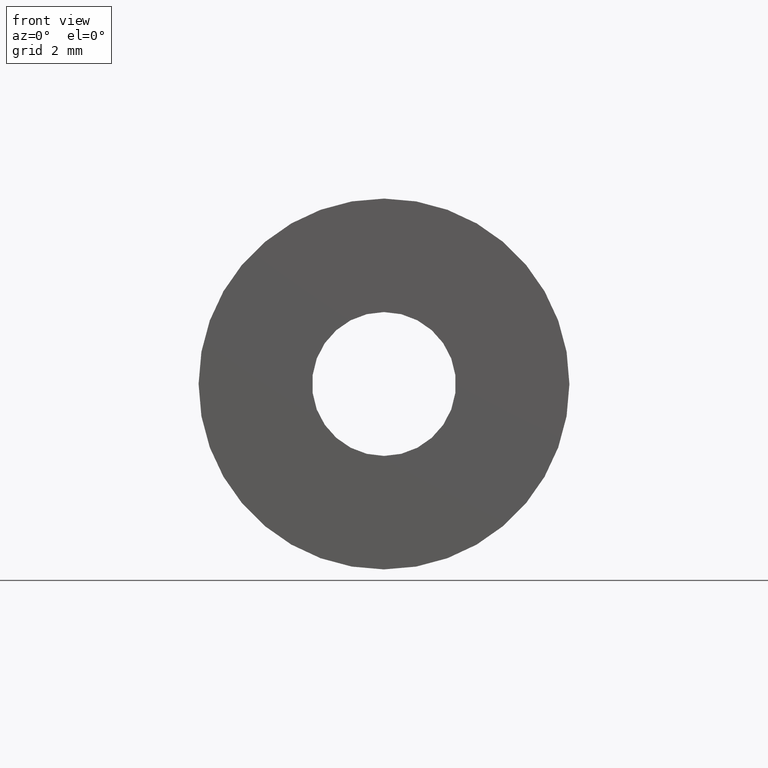
[diagram: clean part render]
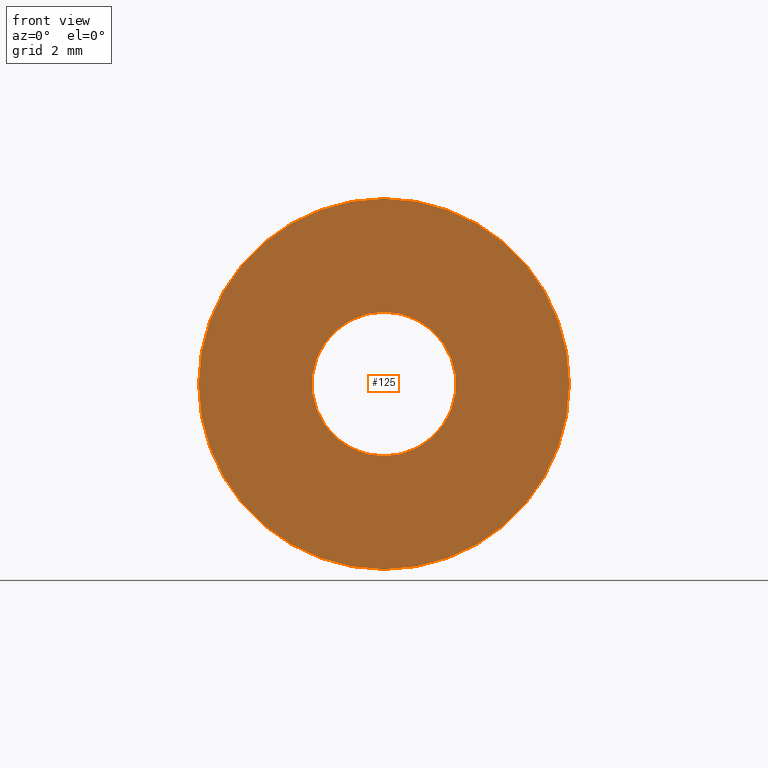
[diagram: same view with one face highlighted and labeled with its STEP entity id]
A machine part, front view. The second image highlights one B-rep face of the part: STEP entity #125.
In plain terms, the highlighted planar face has unit normal (0, 1, 0).
Its self-contained STEP definition (entity closure, byte-faithful):
#3 = CIRCLE ( 'NONE', #106, 0.09700000000000000300 ) ;
#10 = CARTESIAN_POINT ( 'NONE',  ( 3.061616997868383000E-017, 0.0000000000000000000, 0.2500000000000000000 ) ) ;
#12 = CARTESIAN_POINT ( 'NONE',  ( 0.0000000000000000000, 0.0000000000000000000, 0.0000000000000000000 ) ) ;
#14 = EDGE_CURVE ( 'NONE', #208, #220, #95, .T. ) ;
#32 = CIRCLE ( 'NONE', #56, 0.2500000000000000000 ) ;
#41 = DIRECTION ( 'NONE',  ( 0.0000000000000000000, 1.000000000000000000, 0.0000000000000000000 ) ) ;
#43 = EDGE_CURVE ( 'NONE', #220, #208, #3, .T. ) ;
#44 = CARTESIAN_POINT ( 'NONE',  ( 1.187907395172932600E-017, 0.0000000000000000000, 0.09700000000000000300 ) ) ;
#56 = AXIS2_PLACEMENT_3D ( 'NONE', #169, #76, #199 ) ;
#64 = DIRECTION ( 'NONE',  ( 0.0000000000000000000, 1.000000000000000000, 0.0000000000000000000 ) ) ;
#70 = CARTESIAN_POINT ( 'NONE',  ( 0.0000000000000000000, 0.0000000000000000000, -0.2500000000000000000 ) ) ;
#71 = CARTESIAN_POINT ( 'NONE',  ( 0.0000000000000000000, 0.0000000000000000000, 0.0000000000000000000 ) ) ;
#76 = DIRECTION ( 'NONE',  ( 0.0000000000000000000, 1.000000000000000000, 0.0000000000000000000 ) ) ;
#78 = FACE_OUTER_BOUND ( 'NONE', #193, .T. ) ;
#80 = DIRECTION ( 'NONE',  ( 0.0000000000000000000, -0.0000000000000000000, 1.000000000000000000 ) ) ;
#81 = CIRCLE ( 'NONE', #107, 0.2500000000000000000 ) ;
#84 = VERTEX_POINT ( 'NONE', #70 ) ;
#91 = AXIS2_PLACEMENT_3D ( 'NONE', #71, #163, #128 ) ;
#93 = DIRECTION ( 'NONE',  ( 0.0000000000000000000, 0.0000000000000000000, 1.000000000000000000 ) ) ;
#94 = EDGE_CURVE ( 'NONE', #84, #129, #81, .T. ) ;
#95 = CIRCLE ( 'NONE', #91, 0.09700000000000000300 ) ;
#96 = EDGE_LOOP ( 'NONE', ( #124, #164 ) ) ;
#106 = AXIS2_PLACEMENT_3D ( 'NONE', #179, #41, #93 ) ;
#107 = AXIS2_PLACEMENT_3D ( 'NONE', #148, #64, #186 ) ;
#111 = ORIENTED_EDGE ( 'NONE', *, *, #94, .F. ) ;
#124 = ORIENTED_EDGE ( 'NONE', *, *, #43, .T. ) ;
#125 = ADVANCED_FACE ( 'NONE', ( #78, #181 ), #218, .F. ) ;
#128 = DIRECTION ( 'NONE',  ( 0.0000000000000000000, 0.0000000000000000000, 1.000000000000000000 ) ) ;
#129 = VERTEX_POINT ( 'NONE', #10 ) ;
#137 = ORIENTED_EDGE ( 'NONE', *, *, #188, .F. ) ;
#148 = CARTESIAN_POINT ( 'NONE',  ( 0.0000000000000000000, 0.0000000000000000000, 0.0000000000000000000 ) ) ;
#163 = DIRECTION ( 'NONE',  ( 0.0000000000000000000, 1.000000000000000000, 0.0000000000000000000 ) ) ;
#164 = ORIENTED_EDGE ( 'NONE', *, *, #14, .T. ) ;
#169 = CARTESIAN_POINT ( 'NONE',  ( 0.0000000000000000000, 0.0000000000000000000, 0.0000000000000000000 ) ) ;
#173 = AXIS2_PLACEMENT_3D ( 'NONE', #12, #187, #80 ) ;
#179 = CARTESIAN_POINT ( 'NONE',  ( 0.0000000000000000000, 0.0000000000000000000, 0.0000000000000000000 ) ) ;
#181 = FACE_BOUND ( 'NONE', #96, .T. ) ;
#186 = DIRECTION ( 'NONE',  ( 0.0000000000000000000, 0.0000000000000000000, 1.000000000000000000 ) ) ;
#187 = DIRECTION ( 'NONE',  ( 0.0000000000000000000, 1.000000000000000000, 0.0000000000000000000 ) ) ;
#188 = EDGE_CURVE ( 'NONE', #129, #84, #32, .T. ) ;
#193 = EDGE_LOOP ( 'NONE', ( #111, #137 ) ) ;
#199 = DIRECTION ( 'NONE',  ( 0.0000000000000000000, 0.0000000000000000000, 1.000000000000000000 ) ) ;
#208 = VERTEX_POINT ( 'NONE', #44 ) ;
#215 = CARTESIAN_POINT ( 'NONE',  ( 0.0000000000000000000, 0.0000000000000000000, -0.09700000000000000300 ) ) ;
#218 = PLANE ( 'NONE',  #173 ) ;
#220 = VERTEX_POINT ( 'NONE', #215 ) ;